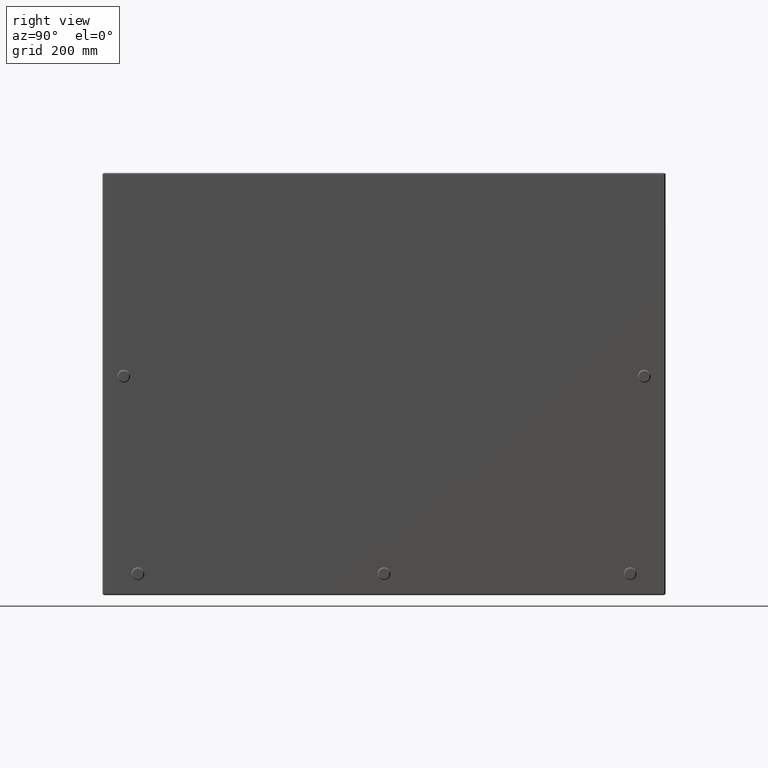
[diagram: clean part render]
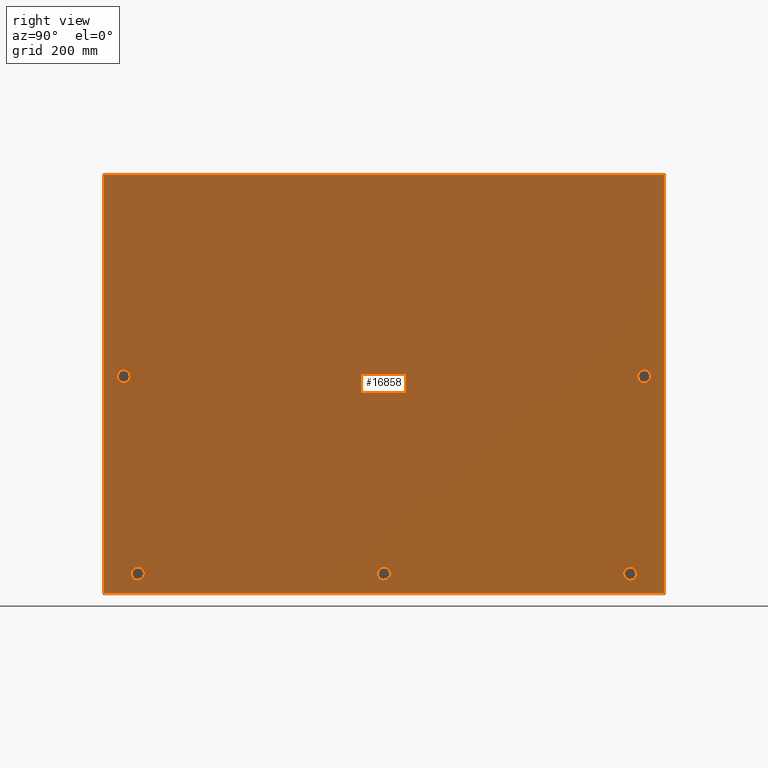
[diagram: same view with one face highlighted and labeled with its STEP entity id]
A machine part, right view. The second image highlights one B-rep face of the part: STEP entity #16858.
In plain terms, the highlighted planar face has unit normal (1, 0, -0).
Its self-contained STEP definition (entity closure, byte-faithful):
#454 = CARTESIAN_POINT ( 'NONE',  ( -0.4305033918687406480, -16.84200000000004138, -21.79299999999996018 ) ) ;
#1711 = EDGE_CURVE ( 'NONE', #38033, #19871, #46576, .T. ) ;
#1779 = LINE ( 'NONE', #68815, #4899 ) ;
#1975 = DIRECTION ( 'NONE',  ( 0.0000000000000000000, -0.0000000000000000000, -1.000000000000000000 ) ) ;
#2085 = VERTEX_POINT ( 'NONE', #44557 ) ;
#2102 = VECTOR ( 'NONE', #19816, 39.37007874015748143 ) ;
#2207 = CARTESIAN_POINT ( 'NONE',  ( 15.78149999999993724, -16.84200000000004138, -20.75350339186870130 ) ) ;
#2241 = EDGE_CURVE ( 'NONE', #37332, #68134, #67299, .T. ) ;
#2401 = FACE_BOUND ( 'NONE', #50412, .T. ) ;
#2541 = VERTEX_POINT ( 'NONE', #45024 ) ;
#2694 = CARTESIAN_POINT ( 'NONE',  ( 15.78149999999993724, -16.84200000000004138, 21.21549660813126081 ) ) ;
#2734 = EDGE_CURVE ( 'NONE', #44865, #25695, #84913, .T. ) ;
#2923 = ORIENTED_EDGE ( 'NONE', *, *, #64222, .T. ) ;
#3130 = LINE ( 'NONE', #9406, #51471 ) ;
#3618 = LINE ( 'NONE', #65936, #45670 ) ;
#4029 = EDGE_CURVE ( 'NONE', #54655, #81832, #34592, .T. ) ;
#4155 = EDGE_CURVE ( 'NONE', #56515, #16454, #37766, .T. ) ;
#4274 = EDGE_CURVE ( 'NONE', #31856, #38182, #72164, .T. ) ;
#4582 = CARTESIAN_POINT ( 'NONE',  ( 16.57250000000001577, -16.84200000000004138, -21.21549660813126081 ) ) ;
#4817 = CARTESIAN_POINT ( 'NONE',  ( -0.4305033918687412586, -16.84200000000004138, 22.58400000000004226 ) ) ;
#4899 = VECTOR ( 'NONE', #35819, 39.37007874015748143 ) ;
#5023 = ORIENTED_EDGE ( 'NONE', *, *, #23188, .T. ) ;
#5048 = DIRECTION ( 'NONE',  ( -0.7071067811865510144, 0.0000000000000000000, -0.7071067811865440200 ) ) ;
#5079 = CARTESIAN_POINT ( 'NONE',  ( 16.40799660813123495, -16.84200000000004138, 21.38000000000004519 ) ) ;
#5141 = ORIENTED_EDGE ( 'NONE', *, *, #63934, .T. ) ;
#5345 = CARTESIAN_POINT ( 'NONE',  ( 16.57250000000001577, -16.84200000000004138, -21.21549660813126081 ) ) ;
#5675 = VERTEX_POINT ( 'NONE', #79381 ) ;
#5760 = CARTESIAN_POINT ( 'NONE',  ( 16.40799660813123495, -16.84200000000004138, 21.38000000000004519 ) ) ;
#6205 = CARTESIAN_POINT ( 'NONE',  ( -0.2659999999999784204, -16.84200000000004138, -21.95750339186870548 ) ) ;
#6507 = LINE ( 'NONE', #17601, #53673 ) ;
#6551 = EDGE_LOOP ( 'NONE', ( #68702, #11673, #21143, #57365, #61155, #50739, #7827, #77545 ) ) ;
#6753 = LINE ( 'NONE', #62826, #70659 ) ;
#6925 = ORIENTED_EDGE ( 'NONE', *, *, #46315, .T. ) ;
#7310 = DIRECTION ( 'NONE',  ( -0.7071067811865620056, 0.0000000000000000000, -0.7071067811865330288 ) ) ;
#7409 = CARTESIAN_POINT ( 'NONE',  ( 15.94600339186867721, -16.84200000000004138, 0.3955000000000586380 ) ) ;
#7603 = VECTOR ( 'NONE', #23539, 39.37007874015748143 ) ;
#7629 = CARTESIAN_POINT ( 'NONE',  ( -0.2659999999999753117, -16.84200000000004138, -22.41949660813125789 ) ) ;
#7633 = VECTOR ( 'NONE', #79332, 39.37007874015748143 ) ;
#7651 = FACE_BOUND ( 'NONE', #82385, .T. ) ;
#7827 = ORIENTED_EDGE ( 'NONE', *, *, #4155, .T. ) ;
#8318 = DIRECTION ( 'NONE',  ( 0.0000000000000000000, 0.0000000000000000000, 1.000000000000000000 ) ) ;
#8334 = ORIENTED_EDGE ( 'NONE', *, *, #82278, .T. ) ;
#9335 = DIRECTION ( 'NONE',  ( 0.7071067811865510144, 0.0000000000000000000, 0.7071067811865440200 ) ) ;
#9406 = CARTESIAN_POINT ( 'NONE',  ( 17.86499999999997712, -16.84200000000004138, -23.87650000000000361 ) ) ;
#9521 = CARTESIAN_POINT ( 'NONE',  ( 15.94600339186867721, -16.84200000000004138, -0.3955000000000393756 ) ) ;
#9853 = EDGE_CURVE ( 'NONE', #16454, #38033, #76577, .T. ) ;
#10075 = VERTEX_POINT ( 'NONE', #47757 ) ;
#11159 = EDGE_CURVE ( 'NONE', #48336, #38518, #6753, .T. ) ;
#11276 = ORIENTED_EDGE ( 'NONE', *, *, #44952, .T. ) ;
#11463 = EDGE_CURVE ( 'NONE', #21187, #63706, #49698, .T. ) ;
#11491 = VECTOR ( 'NONE', #80661, 39.37007874015748143 ) ;
#11605 = VECTOR ( 'NONE', #24304, 39.37007874015748143 ) ;
#11673 = ORIENTED_EDGE ( 'NONE', *, *, #79215, .T. ) ;
#11861 = VERTEX_POINT ( 'NONE', #44343 ) ;
#12211 = CARTESIAN_POINT ( 'NONE',  ( -0.4305033918687412586, -16.84200000000004138, -21.79299999999996018 ) ) ;
#12293 = EDGE_CURVE ( 'NONE', #17800, #54655, #60305, .T. ) ;
#12620 = DIRECTION ( 'NONE',  ( 0.7071067811865520136, 0.0000000000000000000, -0.7071067811865430208 ) ) ;
#12874 = EDGE_CURVE ( 'NONE', #83065, #56686, #80909, .T. ) ;
#13100 = CARTESIAN_POINT ( 'NONE',  ( 15.78149999999993724, -16.84200000000004138, -21.21549660813126081 ) ) ;
#13272 = DIRECTION ( 'NONE',  ( -1.000000000000000000, 0.0000000000000000000, -0.0000000000000000000 ) ) ;
#13325 = VECTOR ( 'NONE', #35737, 39.37007874015748143 ) ;
#13689 = LINE ( 'NONE', #70059, #17911 ) ;
#13695 = EDGE_CURVE ( 'NONE', #76049, #83065, #3130, .T. ) ;
#13729 = VECTOR ( 'NONE', #39453, 39.37007874015748143 ) ;
#14175 = VECTOR ( 'NONE', #46571, 39.37007874015748143 ) ;
#14320 = LINE ( 'NONE', #36089, #67626 ) ;
#14745 = CARTESIAN_POINT ( 'NONE',  ( -17.88800000000002655, -16.84199994981066695, 23.87650000000000361 ) ) ;
#14840 = CARTESIAN_POINT ( 'NONE',  ( 15.78149999999993724, -16.84200000000004138, -21.21549660813126081 ) ) ;
#14991 = EDGE_CURVE ( 'NONE', #75741, #35815, #45294, .T. ) ;
#15839 = DIRECTION ( 'NONE',  ( -0.0000000000000000000, 0.0000000000000000000, 1.000000000000000000 ) ) ;
#15861 = LINE ( 'NONE', #59755, #65094 ) ;
#15986 = CARTESIAN_POINT ( 'NONE',  ( 16.40799660813123140, -16.84200000000004138, -21.38000000000004519 ) ) ;
#16066 = CARTESIAN_POINT ( 'NONE',  ( 16.40799660813123495, -16.84200000000007691, -20.58899999999995956 ) ) ;
#16454 = VERTEX_POINT ( 'NONE', #82870 ) ;
#16622 = LINE ( 'NONE', #66686, #65821 ) ;
#16858 = ADVANCED_FACE ( 'NONE', ( #77874, #7651, #83053, #2401, #20243, #49658 ), #20475, .T. ) ;
#16896 = CARTESIAN_POINT ( 'NONE',  ( 15.78149999999993724, -16.84200000000004138, -20.75350339186870130 ) ) ;
#17230 = ORIENTED_EDGE ( 'NONE', *, *, #65480, .T. ) ;
#17462 = ORIENTED_EDGE ( 'NONE', *, *, #72640, .T. ) ;
#17560 = CARTESIAN_POINT ( 'NONE',  ( 16.57250000000001577, -16.84200000000004138, 20.75350339186874038 ) ) ;
#17601 = CARTESIAN_POINT ( 'NONE',  ( 16.40799660813123495, -16.84200000000004138, -20.58899999999995956 ) ) ;
#17800 = VERTEX_POINT ( 'NONE', #19122 ) ;
#17801 = EDGE_CURVE ( 'NONE', #72737, #37332, #3618, .T. ) ;
#17911 = VECTOR ( 'NONE', #5048, 39.37007874015748143 ) ;
#18487 = DIRECTION ( 'NONE',  ( 0.0000000000000000000, -0.0000000000000000000, -1.000000000000000000 ) ) ;
#18606 = EDGE_CURVE ( 'NONE', #86165, #5675, #20019, .T. ) ;
#18677 = EDGE_CURVE ( 'NONE', #11861, #59395, #36944, .T. ) ;
#19111 = VECTOR ( 'NONE', #13272, 39.37007874015748143 ) ;
#19122 = CARTESIAN_POINT ( 'NONE',  ( -0.8924966081313041588, -16.84200000000004138, -22.58400000000004226 ) ) ;
#19816 = DIRECTION ( 'NONE',  ( 1.000000000000000000, 0.0000000000000000000, -0.0000000000000000000 ) ) ;
#19871 = VERTEX_POINT ( 'NONE', #79994 ) ;
#19902 = CARTESIAN_POINT ( 'NONE',  ( 16.40799660813123495, -16.84200000000007691, 20.58899999999995956 ) ) ;
#19952 = VECTOR ( 'NONE', #27063, 39.37007874015748143 ) ;
#20019 = LINE ( 'NONE', #37966, #55700 ) ;
#20243 = FACE_BOUND ( 'NONE', #6551, .T. ) ;
#20275 = VECTOR ( 'NONE', #40018, 39.37007874015748143 ) ;
#20386 = DIRECTION ( 'NONE',  ( 0.7071067811865520136, 0.0000000000000000000, 0.7071067811865430208 ) ) ;
#20475 = PLANE ( 'NONE',  #21942 ) ;
#20506 = CARTESIAN_POINT ( 'NONE',  ( 15.78149999999993192, -16.84200000000004138, 0.2309966081312912478 ) ) ;
#21143 = ORIENTED_EDGE ( 'NONE', *, *, #11463, .T. ) ;
#21187 = VERTEX_POINT ( 'NONE', #29097 ) ;
#21414 = ORIENTED_EDGE ( 'NONE', *, *, #2241, .T. ) ;
#21790 = DIRECTION ( 'NONE',  ( 0.7071067811865520136, 0.0000000000000000000, 0.7071067811865430208 ) ) ;
#21942 = AXIS2_PLACEMENT_3D ( 'NONE', #28411, #81893, #1975 ) ;
#22166 = VECTOR ( 'NONE', #59770, 39.37007874015748143 ) ;
#22383 = ORIENTED_EDGE ( 'NONE', *, *, #52794, .T. ) ;
#22469 = CARTESIAN_POINT ( 'NONE',  ( 15.94600339186867721, -16.84200000000004138, 20.58899999999995956 ) ) ;
#22491 = CARTESIAN_POINT ( 'NONE',  ( 16.40799660813123140, -16.84200000000004849, -20.58899999999995600 ) ) ;
#22502 = VERTEX_POINT ( 'NONE', #27650 ) ;
#22956 = EDGE_CURVE ( 'NONE', #68968, #23068, #71558, .T. ) ;
#22971 = CARTESIAN_POINT ( 'NONE',  ( -0.2659999999999751452, -16.84200000000004138, -22.41949660813125789 ) ) ;
#23068 = VERTEX_POINT ( 'NONE', #47824 ) ;
#23188 = EDGE_CURVE ( 'NONE', #64527, #66613, #44376, .T. ) ;
#23417 = ORIENTED_EDGE ( 'NONE', *, *, #30571, .T. ) ;
#23539 = DIRECTION ( 'NONE',  ( 0.0000000000000000000, 0.0000000000000000000, -1.000000000000000000 ) ) ;
#24304 = DIRECTION ( 'NONE',  ( 0.0000000000000000000, 0.0000000000000000000, -1.000000000000000000 ) ) ;
#24390 = DIRECTION ( 'NONE',  ( -1.000000000000000000, 0.0000000000000000000, -0.0000000000000000000 ) ) ;
#24630 = CARTESIAN_POINT ( 'NONE',  ( -0.4305033918687427574, -16.84200000000004138, 22.58400000000004226 ) ) ;
#24747 = ORIENTED_EDGE ( 'NONE', *, *, #12874, .T. ) ;
#24845 = ORIENTED_EDGE ( 'NONE', *, *, #53832, .T. ) ;
#25061 = CARTESIAN_POINT ( 'NONE',  ( 16.40799660813123850, -16.84200000000004138, -0.3955000000000411520 ) ) ;
#25435 = VECTOR ( 'NONE', #20386, 39.37007874015748143 ) ;
#25454 = ORIENTED_EDGE ( 'NONE', *, *, #4029, .T. ) ;
#25695 = VERTEX_POINT ( 'NONE', #15986 ) ;
#26646 = DIRECTION ( 'NONE',  ( 1.000000000000000000, 0.0000000000000000000, -0.0000000000000000000 ) ) ;
#27063 = DIRECTION ( 'NONE',  ( -1.000000000000000000, 0.0000000000000000000, -0.0000000000000000000 ) ) ;
#27650 = CARTESIAN_POINT ( 'NONE',  ( 15.94600339186867899, -16.84200000000004138, -20.58899999999995600 ) ) ;
#27865 = LINE ( 'NONE', #4817, #28965 ) ;
#28064 = LINE ( 'NONE', #56781, #29182 ) ;
#28411 = CARTESIAN_POINT ( 'NONE',  ( -17.88800000000002655, -16.84200000000004138, -23.87650000000000361 ) ) ;
#28709 = LINE ( 'NONE', #83755, #77885 ) ;
#28961 = ORIENTED_EDGE ( 'NONE', *, *, #56304, .T. ) ;
#28965 = VECTOR ( 'NONE', #78603, 39.37007874015748143 ) ;
#29097 = CARTESIAN_POINT ( 'NONE',  ( 15.94600339186867721, -16.84200000000004138, 20.58899999999995600 ) ) ;
#29159 = DIRECTION ( 'NONE',  ( 0.0000000000000000000, 0.0000000000000000000, -1.000000000000000000 ) ) ;
#29165 = VECTOR ( 'NONE', #36307, 39.37007874015748143 ) ;
#29182 = VECTOR ( 'NONE', #9335, 39.37007874015748143 ) ;
#29444 = ORIENTED_EDGE ( 'NONE', *, *, #14991, .T. ) ;
#29495 = DIRECTION ( 'NONE',  ( 0.7071067811865510144, 0.0000000000000000000, -0.7071067811865440200 ) ) ;
#29747 = DIRECTION ( 'NONE',  ( 0.0000000000000000000, 0.0000000000000000000, -1.000000000000000000 ) ) ;
#30293 = EDGE_LOOP ( 'NONE', ( #76238, #24747, #8334, #23417 ) ) ;
#30571 = EDGE_CURVE ( 'NONE', #2085, #76049, #1779, .T. ) ;
#31621 = EDGE_CURVE ( 'NONE', #66613, #44865, #62261, .T. ) ;
#31623 = LINE ( 'NONE', #60370, #49429 ) ;
#31856 = VERTEX_POINT ( 'NONE', #72098 ) ;
#32012 = VERTEX_POINT ( 'NONE', #7629 ) ;
#32630 = VECTOR ( 'NONE', #60542, 39.37007874015748143 ) ;
#32969 = ORIENTED_EDGE ( 'NONE', *, *, #43261, .T. ) ;
#33181 = CARTESIAN_POINT ( 'NONE',  ( 16.57250000000001577, -16.84200000000004138, 21.21549660813126081 ) ) ;
#34092 = DIRECTION ( 'NONE',  ( -1.000000000000000000, 0.0000000000000000000, -0.0000000000000000000 ) ) ;
#34273 = EDGE_CURVE ( 'NONE', #63706, #68968, #73676, .T. ) ;
#34328 = VECTOR ( 'NONE', #18487, 39.37007874015748143 ) ;
#34521 = ORIENTED_EDGE ( 'NONE', *, *, #2734, .T. ) ;
#34592 = LINE ( 'NONE', #53810, #11491 ) ;
#34910 = VECTOR ( 'NONE', #39750, 39.37007874015748143 ) ;
#35408 = CARTESIAN_POINT ( 'NONE',  ( 17.86499999999997712, -16.84200000000004138, 23.87650000000000361 ) ) ;
#35737 = DIRECTION ( 'NONE',  ( 0.7071067811865510144, 0.0000000000000000000, -0.7071067811865440200 ) ) ;
#35815 = VERTEX_POINT ( 'NONE', #48255 ) ;
#35819 = DIRECTION ( 'NONE',  ( 1.000000000000000000, 0.0000000000000000000, 0.0000000000000000000 ) ) ;
#36089 = CARTESIAN_POINT ( 'NONE',  ( 15.78149999999993724, -16.84200000000004138, -0.2309966081312692932 ) ) ;
#36307 = DIRECTION ( 'NONE',  ( 0.0000000000000000000, 0.0000000000000000000, 1.000000000000000000 ) ) ;
#36449 = LINE ( 'NONE', #38780, #34328 ) ;
#36608 = EDGE_CURVE ( 'NONE', #59395, #48336, #27865, .T. ) ;
#36944 = LINE ( 'NONE', #64769, #22166 ) ;
#37021 = EDGE_CURVE ( 'NONE', #35815, #65085, #28709, .T. ) ;
#37332 = VERTEX_POINT ( 'NONE', #20506 ) ;
#37766 = LINE ( 'NONE', #33181, #53358 ) ;
#37930 = VECTOR ( 'NONE', #51380, 39.37007874015748143 ) ;
#37966 = CARTESIAN_POINT ( 'NONE',  ( 16.40799660813123495, -16.84200000000004138, 0.3955000000000590821 ) ) ;
#38033 = VERTEX_POINT ( 'NONE', #57287 ) ;
#38182 = VERTEX_POINT ( 'NONE', #25061 ) ;
#38186 = EDGE_CURVE ( 'NONE', #56052, #11861, #86705, .T. ) ;
#38518 = VERTEX_POINT ( 'NONE', #77627 ) ;
#38765 = ORIENTED_EDGE ( 'NONE', *, *, #17801, .T. ) ;
#38780 = CARTESIAN_POINT ( 'NONE',  ( -17.88800000000002655, -16.84200000000004138, -23.87650000000000361 ) ) ;
#38951 = LINE ( 'NONE', #14840, #32630 ) ;
#39453 = DIRECTION ( 'NONE',  ( -0.7071067811865520136, 0.0000000000000000000, -0.7071067811865430208 ) ) ;
#39568 = CARTESIAN_POINT ( 'NONE',  ( -1.057000000000071660, -16.84200000000004138, 21.95750339186870548 ) ) ;
#39647 = CARTESIAN_POINT ( 'NONE',  ( 15.94600339186867721, -16.84200000000004138, 21.38000000000004519 ) ) ;
#39750 = DIRECTION ( 'NONE',  ( -1.000000000000000000, -0.0000000000000000000, -0.0000000000000000000 ) ) ;
#39834 = VERTEX_POINT ( 'NONE', #80485 ) ;
#40018 = DIRECTION ( 'NONE',  ( -0.7071067811865520136, 0.0000000000000000000, 0.7071067811865430208 ) ) ;
#40235 = DIRECTION ( 'NONE',  ( 0.0000000000000000000, 0.0000000000000000000, -1.000000000000000000 ) ) ;
#40563 = VECTOR ( 'NONE', #59055, 39.37007874015748143 ) ;
#41367 = VECTOR ( 'NONE', #24390, 39.37007874015748143 ) ;
#42376 = LINE ( 'NONE', #22469, #41367 ) ;
#43261 = EDGE_CURVE ( 'NONE', #2541, #72737, #14320, .T. ) ;
#44343 = CARTESIAN_POINT ( 'NONE',  ( -1.057000000000072770, -16.84200000000004138, 22.41949660813126499 ) ) ;
#44376 = LINE ( 'NONE', #16066, #78769 ) ;
#44557 = CARTESIAN_POINT ( 'NONE',  ( -17.88800000000002655, -16.84200000000004138, -23.87650000000000361 ) ) ;
#44711 = EDGE_CURVE ( 'NONE', #81832, #10075, #28064, .T. ) ;
#44865 = VERTEX_POINT ( 'NONE', #4582 ) ;
#44952 = EDGE_CURVE ( 'NONE', #10075, #59959, #78175, .T. ) ;
#45024 = CARTESIAN_POINT ( 'NONE',  ( 15.94600339186867899, -16.84200000000004138, -0.3955000000000350457 ) ) ;
#45105 = ORIENTED_EDGE ( 'NONE', *, *, #65205, .T. ) ;
#45294 = LINE ( 'NONE', #64492, #37930 ) ;
#45521 = DIRECTION ( 'NONE',  ( 0.7071067811865430208, 0.0000000000000000000, -0.7071067811865520136 ) ) ;
#45605 = CARTESIAN_POINT ( 'NONE',  ( -17.88800000000002655, -16.84200000000004138, 23.87650000000000361 ) ) ;
#45670 = VECTOR ( 'NONE', #47352, 39.37007874015748143 ) ;
#45858 = EDGE_CURVE ( 'NONE', #22502, #64527, #6507, .T. ) ;
#46315 = EDGE_CURVE ( 'NONE', #59959, #52125, #76210, .T. ) ;
#46571 = DIRECTION ( 'NONE',  ( -0.7071067811865510144, 0.0000000000000000000, 0.7071067811865440200 ) ) ;
#46576 = LINE ( 'NONE', #19902, #68470 ) ;
#47206 = CARTESIAN_POINT ( 'NONE',  ( 17.86499999999998067, -16.84199995817556328, -23.87650000000000361 ) ) ;
#47352 = DIRECTION ( 'NONE',  ( 0.0000000000000000000, 0.0000000000000000000, 1.000000000000000000 ) ) ;
#47757 = CARTESIAN_POINT ( 'NONE',  ( -0.8924966081313039368, -16.84200000000004138, -21.79299999999996018 ) ) ;
#47823 = ORIENTED_EDGE ( 'NONE', *, *, #38186, .T. ) ;
#47824 = CARTESIAN_POINT ( 'NONE',  ( 15.94600339186867721, -16.84200000000004138, 21.38000000000004874 ) ) ;
#47906 = EDGE_CURVE ( 'NONE', #32012, #84293, #13689, .T. ) ;
#48255 = CARTESIAN_POINT ( 'NONE',  ( -0.4305033918687414252, -16.84200000000004138, 21.79299999999996018 ) ) ;
#48336 = VERTEX_POINT ( 'NONE', #24630 ) ;
#48702 = DIRECTION ( 'NONE',  ( -0.7071067811865570096, 0.0000000000000000000, 0.7071067811865380248 ) ) ;
#48773 = VERTEX_POINT ( 'NONE', #16896 ) ;
#49429 = VECTOR ( 'NONE', #74700, 39.37007874015748143 ) ;
#49658 = FACE_BOUND ( 'NONE', #51501, .T. ) ;
#49698 = LINE ( 'NONE', #72710, #20275 ) ;
#49815 = LINE ( 'NONE', #81378, #83210 ) ;
#50412 = EDGE_LOOP ( 'NONE', ( #38765, #21414, #22383, #63060, #2923, #81776, #52697, #32969 ) ) ;
#50739 = ORIENTED_EDGE ( 'NONE', *, *, #81365, .T. ) ;
#50978 = ORIENTED_EDGE ( 'NONE', *, *, #59115, .T. ) ;
#51250 = VECTOR ( 'NONE', #84127, 39.37007874015748143 ) ;
#51380 = DIRECTION ( 'NONE',  ( -0.7071067811865510144, 0.0000000000000000000, -0.7071067811865440200 ) ) ;
#51471 = VECTOR ( 'NONE', #15839, 39.37007874015748143 ) ;
#51501 = EDGE_LOOP ( 'NONE', ( #29444, #63844, #17230, #47823, #59269, #55823, #54312, #45105 ) ) ;
#51865 = VECTOR ( 'NONE', #29159, 39.37007874015748143 ) ;
#52125 = VERTEX_POINT ( 'NONE', #6205 ) ;
#52697 = ORIENTED_EDGE ( 'NONE', *, *, #63723, .T. ) ;
#52794 = EDGE_CURVE ( 'NONE', #68134, #86165, #16622, .T. ) ;
#52830 = CARTESIAN_POINT ( 'NONE',  ( -1.057000000000068551, -16.84200000000004138, -21.95750339186870548 ) ) ;
#53358 = VECTOR ( 'NONE', #12620, 39.37007874015748143 ) ;
#53673 = VECTOR ( 'NONE', #63264, 39.37007874015748143 ) ;
#53810 = CARTESIAN_POINT ( 'NONE',  ( -1.057000000000071882, -16.84200000000004138, -21.95750339186870193 ) ) ;
#53832 = EDGE_CURVE ( 'NONE', #25695, #39834, #49815, .T. ) ;
#53977 = CARTESIAN_POINT ( 'NONE',  ( -0.8924966081313041588, -16.84200000000004138, -22.58400000000004226 ) ) ;
#54312 = ORIENTED_EDGE ( 'NONE', *, *, #11159, .T. ) ;
#54655 = VERTEX_POINT ( 'NONE', #81515 ) ;
#54883 = CARTESIAN_POINT ( 'NONE',  ( 16.57250000000001577, -16.84200000000004138, -21.21549660813129989 ) ) ;
#55158 = CARTESIAN_POINT ( 'NONE',  ( 15.94600339186867721, -16.84200000000004138, -20.58899999999995956 ) ) ;
#55612 = LINE ( 'NONE', #5760, #2102 ) ;
#55700 = VECTOR ( 'NONE', #45521, 39.37007874015748143 ) ;
#55703 = LINE ( 'NONE', #55158, #84926 ) ;
#55822 = EDGE_LOOP ( 'NONE', ( #25454, #85062, #11276, #6925, #50978, #62763, #17462, #76060 ) ) ;
#55823 = ORIENTED_EDGE ( 'NONE', *, *, #36608, .T. ) ;
#56052 = VERTEX_POINT ( 'NONE', #39568 ) ;
#56304 = EDGE_CURVE ( 'NONE', #39834, #83013, #38951, .T. ) ;
#56506 = CARTESIAN_POINT ( 'NONE',  ( -0.4305033918687464767, -16.84200000000004138, -22.58400000000003871 ) ) ;
#56515 = VERTEX_POINT ( 'NONE', #5079 ) ;
#56686 = VERTEX_POINT ( 'NONE', #14745 ) ;
#56781 = CARTESIAN_POINT ( 'NONE',  ( -0.8924966081313041588, -16.84200000000004138, -21.79299999999996018 ) ) ;
#56850 = LINE ( 'NONE', #84342, #69288 ) ;
#57287 = CARTESIAN_POINT ( 'NONE',  ( 16.57250000000000867, -16.84200000000004849, 20.75350339186870841 ) ) ;
#57365 = ORIENTED_EDGE ( 'NONE', *, *, #34273, .T. ) ;
#57434 = LINE ( 'NONE', #2207, #29165 ) ;
#59055 = DIRECTION ( 'NONE',  ( 1.000000000000000000, 0.0000000000000000000, -0.0000000000000000000 ) ) ;
#59086 = CARTESIAN_POINT ( 'NONE',  ( -1.057000000000071882, -16.84200000000004138, -22.41949660813125789 ) ) ;
#59115 = EDGE_CURVE ( 'NONE', #52125, #32012, #80904, .T. ) ;
#59269 = ORIENTED_EDGE ( 'NONE', *, *, #18677, .T. ) ;
#59395 = VERTEX_POINT ( 'NONE', #80241 ) ;
#59478 = DIRECTION ( 'NONE',  ( -0.7071067811865474617, 0.0000000000000000000, -0.7071067811865474617 ) ) ;
#59755 = CARTESIAN_POINT ( 'NONE',  ( 16.57250000000001577, -16.84200000000004138, -0.2309966081312728459 ) ) ;
#59770 = DIRECTION ( 'NONE',  ( 0.7071067811865510144, 0.0000000000000000000, 0.7071067811865440200 ) ) ;
#59959 = VERTEX_POINT ( 'NONE', #454 ) ;
#60305 = LINE ( 'NONE', #59086, #14175 ) ;
#60370 = CARTESIAN_POINT ( 'NONE',  ( -1.057000000000071882, -16.84200000000004138, 21.95750339186870193 ) ) ;
#60532 = CARTESIAN_POINT ( 'NONE',  ( 15.94600339186867721, -16.84200000000004138, 0.3955000000000590821 ) ) ;
#60542 = DIRECTION ( 'NONE',  ( -0.7071067811865520136, 0.0000000000000000000, 0.7071067811865430208 ) ) ;
#61155 = ORIENTED_EDGE ( 'NONE', *, *, #22956, .T. ) ;
#61827 = ORIENTED_EDGE ( 'NONE', *, *, #45858, .T. ) ;
#62261 = LINE ( 'NONE', #54883, #51865 ) ;
#62763 = ORIENTED_EDGE ( 'NONE', *, *, #47906, .T. ) ;
#62826 = CARTESIAN_POINT ( 'NONE',  ( -0.2659999999999751452, -16.84200000000004138, 22.41949660813125789 ) ) ;
#62906 = LINE ( 'NONE', #53977, #19952 ) ;
#63060 = ORIENTED_EDGE ( 'NONE', *, *, #18606, .T. ) ;
#63264 = DIRECTION ( 'NONE',  ( 1.000000000000000000, 0.0000000000000000000, -0.0000000000000000000 ) ) ;
#63706 = VERTEX_POINT ( 'NONE', #70067 ) ;
#63723 = EDGE_CURVE ( 'NONE', #38182, #2541, #86074, .T. ) ;
#63844 = ORIENTED_EDGE ( 'NONE', *, *, #37021, .T. ) ;
#63934 = EDGE_CURVE ( 'NONE', #48773, #22502, #55703, .T. ) ;
#64222 = EDGE_CURVE ( 'NONE', #5675, #31856, #15861, .T. ) ;
#64492 = CARTESIAN_POINT ( 'NONE',  ( -0.4305033918687412586, -16.84200000000004138, 21.79299999999996018 ) ) ;
#64527 = VERTEX_POINT ( 'NONE', #22491 ) ;
#64769 = CARTESIAN_POINT ( 'NONE',  ( -0.8924966081313041588, -16.84200000000004138, 22.58400000000004226 ) ) ;
#65085 = VERTEX_POINT ( 'NONE', #68605 ) ;
#65094 = VECTOR ( 'NONE', #40235, 39.37007874015748143 ) ;
#65205 = EDGE_CURVE ( 'NONE', #38518, #75741, #56850, .T. ) ;
#65480 = EDGE_CURVE ( 'NONE', #65085, #56052, #31623, .T. ) ;
#65821 = VECTOR ( 'NONE', #26646, 39.37007874015748143 ) ;
#65936 = CARTESIAN_POINT ( 'NONE',  ( 15.78149999999993724, -16.84200000000004138, 0.2309966081312889996 ) ) ;
#66234 = EDGE_CURVE ( 'NONE', #83013, #48773, #57434, .T. ) ;
#66352 = VECTOR ( 'NONE', #8318, 39.37007874015748143 ) ;
#66383 = ORIENTED_EDGE ( 'NONE', *, *, #66234, .T. ) ;
#66613 = VERTEX_POINT ( 'NONE', #81456 ) ;
#66686 = CARTESIAN_POINT ( 'NONE',  ( 16.40799660813123495, -16.84200000000004138, 0.3955000000000590821 ) ) ;
#67180 = CARTESIAN_POINT ( 'NONE',  ( 16.40799660813126692, -16.84200000000004138, 0.3955000000000583604 ) ) ;
#67299 = LINE ( 'NONE', #60532, #25435 ) ;
#67626 = VECTOR ( 'NONE', #48702, 39.37007874015748143 ) ;
#68134 = VERTEX_POINT ( 'NONE', #7409 ) ;
#68470 = VECTOR ( 'NONE', #59478, 39.37007874015748854 ) ;
#68605 = CARTESIAN_POINT ( 'NONE',  ( -0.8924966081313079336, -16.84200000000004138, 21.79299999999995663 ) ) ;
#68702 = ORIENTED_EDGE ( 'NONE', *, *, #1711, .T. ) ;
#68815 = CARTESIAN_POINT ( 'NONE',  ( -17.88800000000002655, -16.84200000000004138, -23.87650000000000361 ) ) ;
#68968 = VERTEX_POINT ( 'NONE', #79832 ) ;
#69288 = VECTOR ( 'NONE', #29747, 39.37007874015748143 ) ;
#70059 = CARTESIAN_POINT ( 'NONE',  ( -0.2659999999999751452, -16.84200000000004138, -22.41949660813125789 ) ) ;
#70067 = CARTESIAN_POINT ( 'NONE',  ( 15.78149999999993724, -16.84200000000004138, 20.75350339186870130 ) ) ;
#70659 = VECTOR ( 'NONE', #29495, 39.37007874015748143 ) ;
#71198 = DIRECTION ( 'NONE',  ( -1.000000000000000000, 0.0000000000000000000, -0.0000000000000000000 ) ) ;
#71558 = LINE ( 'NONE', #39647, #7633 ) ;
#72098 = CARTESIAN_POINT ( 'NONE',  ( 16.57250000000001577, -16.84200000000004138, -0.2309966081312709862 ) ) ;
#72164 = LINE ( 'NONE', #80191, #75285 ) ;
#72640 = EDGE_CURVE ( 'NONE', #84293, #17800, #62906, .T. ) ;
#72710 = CARTESIAN_POINT ( 'NONE',  ( 15.78149999999993724, -16.84200000000004138, 20.75350339186870130 ) ) ;
#72737 = VERTEX_POINT ( 'NONE', #82570 ) ;
#73676 = LINE ( 'NONE', #2694, #66352 ) ;
#74700 = DIRECTION ( 'NONE',  ( -0.7071067811865510144, 0.0000000000000000000, 0.7071067811865440200 ) ) ;
#75285 = VECTOR ( 'NONE', #7310, 39.37007874015748143 ) ;
#75741 = VERTEX_POINT ( 'NONE', #78165 ) ;
#75777 = CARTESIAN_POINT ( 'NONE',  ( -0.4305033918687412586, -16.84200000000004138, -21.79299999999996018 ) ) ;
#76049 = VERTEX_POINT ( 'NONE', #47206 ) ;
#76060 = ORIENTED_EDGE ( 'NONE', *, *, #12293, .T. ) ;
#76210 = LINE ( 'NONE', #75777, #13325 ) ;
#76238 = ORIENTED_EDGE ( 'NONE', *, *, #13695, .T. ) ;
#76577 = LINE ( 'NONE', #17560, #11605 ) ;
#77545 = ORIENTED_EDGE ( 'NONE', *, *, #9853, .T. ) ;
#77627 = CARTESIAN_POINT ( 'NONE',  ( -0.2659999999999749787, -16.84200000000004138, 22.41949660813125433 ) ) ;
#77874 = FACE_OUTER_BOUND ( 'NONE', #30293, .T. ) ;
#77885 = VECTOR ( 'NONE', #71198, 39.37007874015748143 ) ;
#78165 = CARTESIAN_POINT ( 'NONE',  ( -0.2659999999999788090, -16.84200000000004138, 21.95750339186870548 ) ) ;
#78175 = LINE ( 'NONE', #12211, #40563 ) ;
#78603 = DIRECTION ( 'NONE',  ( 1.000000000000000000, 0.0000000000000000000, -0.0000000000000000000 ) ) ;
#78769 = VECTOR ( 'NONE', #82189, 39.37007874015748854 ) ;
#79215 = EDGE_CURVE ( 'NONE', #19871, #21187, #42376, .T. ) ;
#79332 = DIRECTION ( 'NONE',  ( 0.7071067811865520136, 0.0000000000000000000, 0.7071067811865430208 ) ) ;
#79381 = CARTESIAN_POINT ( 'NONE',  ( 16.57250000000001577, -16.84200000000004138, 0.2309966081312834763 ) ) ;
#79832 = CARTESIAN_POINT ( 'NONE',  ( 15.78149999999992836, -16.84200000000004138, 21.21549660813126081 ) ) ;
#79994 = CARTESIAN_POINT ( 'NONE',  ( 16.40799660813123495, -16.84200000000006625, 20.58899999999995600 ) ) ;
#80191 = CARTESIAN_POINT ( 'NONE',  ( 16.57250000000001577, -16.84200000000004138, -0.2309966081312740394 ) ) ;
#80241 = CARTESIAN_POINT ( 'NONE',  ( -0.8924966081313044919, -16.84200000000004138, 22.58400000000004226 ) ) ;
#80485 = CARTESIAN_POINT ( 'NONE',  ( 15.94600339186868254, -16.84200000000004138, -21.38000000000003809 ) ) ;
#80661 = DIRECTION ( 'NONE',  ( 0.0000000000000000000, 0.0000000000000000000, 1.000000000000000000 ) ) ;
#80904 = LINE ( 'NONE', #22971, #7603 ) ;
#80909 = LINE ( 'NONE', #45605, #34910 ) ;
#81365 = EDGE_CURVE ( 'NONE', #23068, #56515, #55612, .T. ) ;
#81378 = CARTESIAN_POINT ( 'NONE',  ( 15.94600339186867721, -16.84200000000004138, -21.38000000000004519 ) ) ;
#81456 = CARTESIAN_POINT ( 'NONE',  ( 16.57250000000001577, -16.84200000000005559, -20.75350339186874038 ) ) ;
#81515 = CARTESIAN_POINT ( 'NONE',  ( -1.057000000000071882, -16.84200000000004138, -22.41949660813125789 ) ) ;
#81776 = ORIENTED_EDGE ( 'NONE', *, *, #4274, .T. ) ;
#81832 = VERTEX_POINT ( 'NONE', #52830 ) ;
#81893 = DIRECTION ( 'NONE',  ( 0.0000000000000000000, -1.000000000000000000, 0.0000000000000000000 ) ) ;
#82189 = DIRECTION ( 'NONE',  ( 0.7071067811865474617, 0.0000000000000000000, -0.7071067811865474617 ) ) ;
#82278 = EDGE_CURVE ( 'NONE', #56686, #2085, #36449, .T. ) ;
#82385 = EDGE_LOOP ( 'NONE', ( #66383, #5141, #61827, #5023, #86290, #34521, #24845, #28961 ) ) ;
#82570 = CARTESIAN_POINT ( 'NONE',  ( 15.78149999999993724, -16.84200000000004138, -0.2309966081312697372 ) ) ;
#82870 = CARTESIAN_POINT ( 'NONE',  ( 16.57250000000000512, -16.84200000000004138, 21.21549660813128924 ) ) ;
#83013 = VERTEX_POINT ( 'NONE', #13100 ) ;
#83053 = FACE_BOUND ( 'NONE', #55822, .T. ) ;
#83065 = VERTEX_POINT ( 'NONE', #35408 ) ;
#83210 = VECTOR ( 'NONE', #34092, 39.37007874015748143 ) ;
#83755 = CARTESIAN_POINT ( 'NONE',  ( -0.8924966081313041588, -16.84200000000004138, 21.79299999999996018 ) ) ;
#84127 = DIRECTION ( 'NONE',  ( 0.0000000000000000000, 0.0000000000000000000, 1.000000000000000000 ) ) ;
#84293 = VERTEX_POINT ( 'NONE', #56506 ) ;
#84342 = CARTESIAN_POINT ( 'NONE',  ( -0.2659999999999751452, -16.84200000000004138, 21.95750339186870193 ) ) ;
#84913 = LINE ( 'NONE', #5345, #13729 ) ;
#84926 = VECTOR ( 'NONE', #21790, 39.37007874015748143 ) ;
#85062 = ORIENTED_EDGE ( 'NONE', *, *, #44711, .T. ) ;
#85261 = CARTESIAN_POINT ( 'NONE',  ( -1.057000000000071882, -16.84200000000004138, 22.41949660813125789 ) ) ;
#86074 = LINE ( 'NONE', #9521, #19111 ) ;
#86165 = VERTEX_POINT ( 'NONE', #67180 ) ;
#86290 = ORIENTED_EDGE ( 'NONE', *, *, #31621, .T. ) ;
#86705 = LINE ( 'NONE', #85261, #51250 ) ;